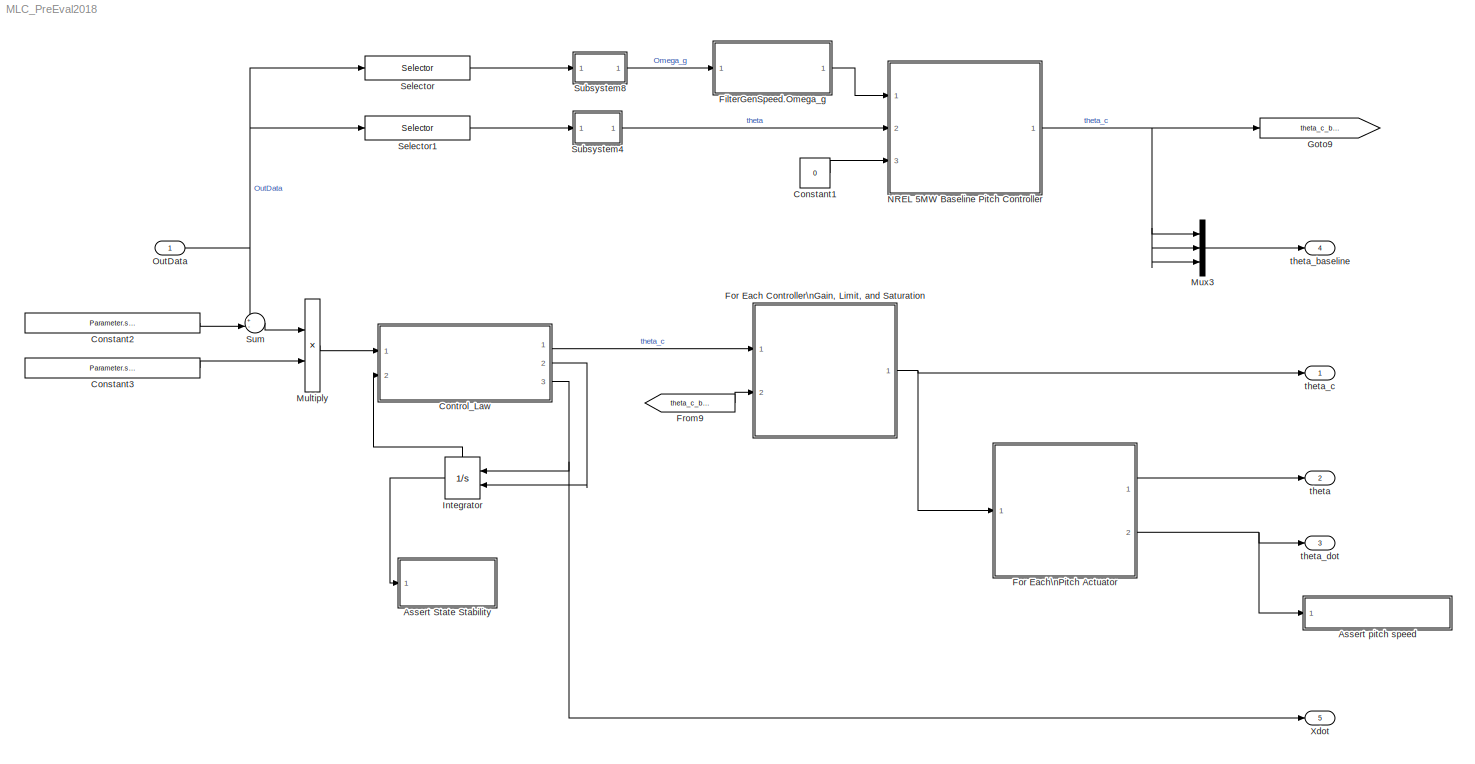
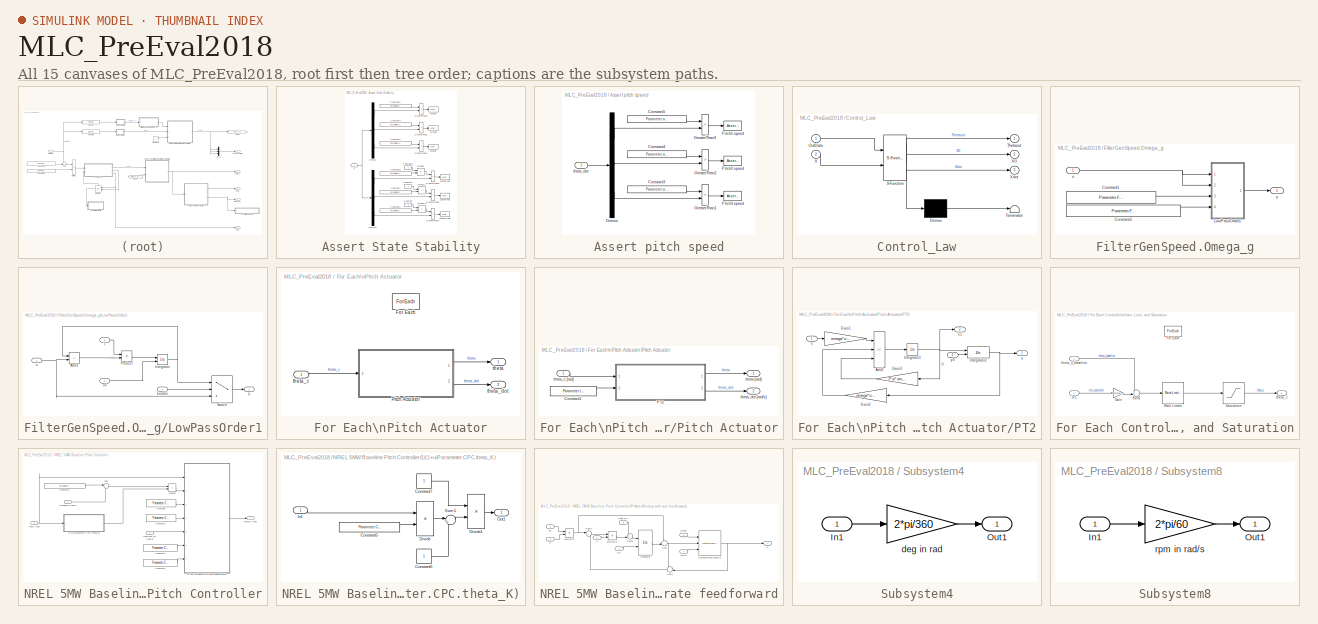
[diagram: thumbnail index - all 15 canvases of the model, root first then tree order]
MODEL MLC_PreEval2018
KIND model
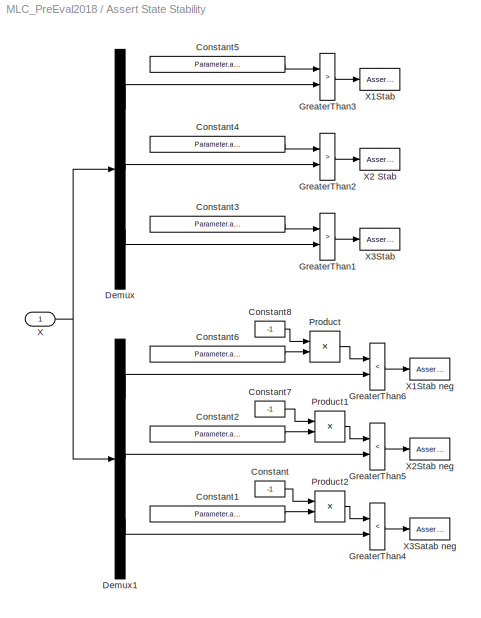
BLOCK [SubSystem] Assert State Stability
  Ports = [1]
  RequestExecContextInheritance = off
  SID = 9297
BLOCK [Constant] Assert State Stability/Constant
  SID = 9321
  Value = -1
BLOCK [Constant] Assert State Stability/Constant1
  SID = 9309
  Value = Parameter.assert.StateLim
BLOCK [Constant] Assert State Stability/Constant2
  SID = 9310
  Value = Parameter.assert.StateLim
BLOCK [Constant] Assert State Stability/Constant3
  SID = 9299
  Value = Parameter.assert.StateLim
BLOCK [Constant] Assert State Stability/Constant4
  SID = 9300
  Value = Parameter.assert.StateLim
BLOCK [Constant] Assert State Stability/Constant5
  SID = 9301
  Value = Parameter.assert.StateLim
BLOCK [Constant] Assert State Stability/Constant6
  SID = 9311
  Value = Parameter.assert.StateLim
BLOCK [Constant] Assert State Stability/Constant7
  SID = 9322
  Value = -1
BLOCK [Constant] Assert State Stability/Constant8
  SID = 9323
  Value = -1
BLOCK [Demux] Assert State Stability/Demux
  Outputs = 3
  Ports = [1, 3]
  SID = 9302
BLOCK [Demux] Assert State Stability/Demux1
  Outputs = 3
  Ports = [1, 3]
  SID = 9324
BLOCK [RelationalOperator] Assert State Stability/GreaterThan1
  InputSameDT = off
  Operator = >
  OutDataTypeStr = boolean
  Ports = [2, 1]
  RndMeth = Simplest
  SID = 9303
BLOCK [RelationalOperator] Assert State Stability/GreaterThan2
  InputSameDT = off
  Operator = >
  OutDataTypeStr = boolean
  Ports = [2, 1]
  RndMeth = Simplest
  SID = 9304
BLOCK [RelationalOperator] Assert State Stability/GreaterThan3
  InputSameDT = off
  Operator = >
  OutDataTypeStr = boolean
  Ports = [2, 1]
  RndMeth = Simplest
  SID = 9305
BLOCK [RelationalOperator] Assert State Stability/GreaterThan4
  InputSameDT = off
  Operator = <
  OutDataTypeStr = boolean
  Ports = [2, 1]
  RndMeth = Simplest
  SID = 9312
BLOCK [RelationalOperator] Assert State Stability/GreaterThan5
  InputSameDT = off
  Operator = <
  OutDataTypeStr = boolean
  Ports = [2, 1]
  RndMeth = Simplest
  SID = 9313
BLOCK [RelationalOperator] Assert State Stability/GreaterThan6
  InputSameDT = off
  Operator = <
  OutDataTypeStr = boolean
  Ports = [2, 1]
  RndMeth = Simplest
  SID = 9314
BLOCK [Product] Assert State Stability/Product
  Ports = [2, 1]
  SID = 9318
BLOCK [Product] Assert State Stability/Product1
  Ports = [2, 1]
  SID = 9319
BLOCK [Product] Assert State Stability/Product2
  Ports = [2, 1]
  SID = 9320
BLOCK [Inport] Assert State Stability/X
  SID = 9298
BLOCK [Assertion] Assert State Stability/X1Stab
  SID = 9306
BLOCK [Assertion] Assert State Stability/X1Stab neg
  SID = 9315
BLOCK [Assertion] Assert State Stability/X2 Stab
  SID = 9307
BLOCK [Assertion] Assert State Stability/X2Stab neg
  SID = 9316
BLOCK [Assertion] Assert State Stability/X3Satab neg
  SID = 9317
BLOCK [Assertion] Assert State Stability/X3Stab
  SID = 9308
BLOCK [SubSystem] Assert pitch speed
  Ports = [1]
  RequestExecContextInheritance = off
  SID = 7727
BLOCK [Constant] Assert pitch speed/Constant3
  SID = 7711
  Value = Parameter.assert.pitchVLim
BLOCK [Constant] Assert pitch speed/Constant4
  SID = 7712
  Value = Parameter.assert.pitchVLim
BLOCK [Constant] Assert pitch speed/Constant5
  SID = 7713
  Value = Parameter.assert.pitchVLim
BLOCK [Demux] Assert pitch speed/Demux
  Outputs = 3
  Ports = [1, 3]
  SID = 7726
BLOCK [RelationalOperator] Assert pitch speed/GreaterThan1
  InputSameDT = off
  Operator = >
  OutDataTypeStr = boolean
  Ports = [2, 1]
  RndMeth = Simplest
  SID = 7714
BLOCK [RelationalOperator] Assert pitch speed/GreaterThan2
  InputSameDT = off
  Operator = >
  OutDataTypeStr = boolean
  Ports = [2, 1]
  RndMeth = Simplest
  SID = 7715
BLOCK [RelationalOperator] Assert pitch speed/GreaterThan3
  InputSameDT = off
  Operator = >
  OutDataTypeStr = boolean
  Ports = [2, 1]
  RndMeth = Simplest
  SID = 7716
BLOCK [Assertion] Assert pitch speed/Pitch1 speed
  SID = 7719
BLOCK [Assertion] Assert pitch speed/Pitch2 speed
  SID = 7718
BLOCK [Assertion] Assert pitch speed/Pitch3 speed
  SID = 7717
BLOCK [Inport] Assert pitch speed/theta_dot
  SID = 7728
BLOCK [Constant] Constant1
  SID = 7794
  Value = 0
BLOCK [Constant] Constant2
  SID = 7987
  Value = Parameter.sensorsNormOffset
BLOCK [Constant] Constant3
  SID = 7991
  Value = Parameter.sensorNormGain
BLOCK [SubSystem] Control_Law
  ErrorFcn = Stateflow.Translate.translate
  PermitHierarchicalResolution = ExplicitOnly
  Ports = [2, 3]
  RequestExecContextInheritance = off
  SFBlockType = MATLAB Function
  SID = 9293
  TreatAsAtomicUnit = on
BLOCK [Demux] Control_Law/ Demux 
  Outputs = 1
  Ports = [1, 1]
  SID = 9293::28
BLOCK [S-Function] Control_Law/ SFunction 
  EnableBusSupport = off
  FunctionName = sf_sfun
  Parameters = CParameter
  PortCounts = [2 4]
  Ports = [2, 4]
  SFcnIsStateOwnerBlock = off
  SFunctionDeploymentMode = off
  SID = 9293::27
  Tag = Stateflow S-Function MLC_PreEval2018 2
BLOCK [Terminator] Control_Law/ Terminator 
  SID = 9293::29
BLOCK [Inport] Control_Law/OutData
  SID = 9293::23
BLOCK [Outport] Control_Law/Thetaout
  SID = 9293::5
  VectorParamsAs1DForOutWhenUnconnected = off
BLOCK [Inport] Control_Law/X
  Port = 2
  SID = 9293::24
BLOCK [Outport] Control_Law/X0
  Port = 2
  SID = 9293::26
  VectorParamsAs1DForOutWhenUnconnected = off
BLOCK [Outport] Control_Law/Xdot
  Port = 3
  SID = 9293::22
  VectorParamsAs1DForOutWhenUnconnected = off
BLOCK [SubSystem] FilterGenSpeed.Omega_g
  Ports = [1, 1]
  RequestExecContextInheritance = off
  SID = 7795
BLOCK [Constant] FilterGenSpeed.Omega_g/Constant1
  SID = 7797
  Value = Parameter.Filter.FilterGenSpeed.T63
BLOCK [Constant] FilterGenSpeed.Omega_g/Constant3
  SID = 7798
  Value = Parameter.Filter.FilterGenSpeed.Omega_g.Enable
BLOCK [SubSystem] FilterGenSpeed.Omega_g/LowPassOrder1
  Ports = [4, 1]
  RequestExecContextInheritance = off
  SID = 7799
BLOCK [Sum] FilterGenSpeed.Omega_g/LowPassOrder1/Add3
  IconShape = rectangular
  Inputs = -+
  Ports = [2, 1]
  SID = 7804
BLOCK [Inport] FilterGenSpeed.Omega_g/LowPassOrder1/Enable
  Port = 4
  SID = 7803
BLOCK [Integrator] FilterGenSpeed.Omega_g/LowPassOrder1/Integrator
  InitialConditionSource = external
  Ports = [2, 1]
  SID = 7805
BLOCK [Product] FilterGenSpeed.Omega_g/LowPassOrder1/Product
  Inputs = /*
  Ports = [2, 1]
  RndMeth = Zero
  SID = 7806
BLOCK [Switch] FilterGenSpeed.Omega_g/LowPassOrder1/Switch
  Criteria = u2 > Threshold
  InputSameDT = off
  SID = 7807
  SaturateOnIntegerOverflow = off
  Threshold = 0.5
BLOCK [Inport] FilterGenSpeed.Omega_g/LowPassOrder1/T
  Port = 3
  SID = 7802
BLOCK [Inport] FilterGenSpeed.Omega_g/LowPassOrder1/u
  Port = 2
  SID = 7801
BLOCK [Inport] FilterGenSpeed.Omega_g/LowPassOrder1/u0
  SID = 7800
BLOCK [Outport] FilterGenSpeed.Omega_g/LowPassOrder1/y
  SID = 7808
  VectorParamsAs1DForOutWhenUnconnected = off
BLOCK [Inport] FilterGenSpeed.Omega_g/u
  SID = 7796
BLOCK [Outport] FilterGenSpeed.Omega_g/y
  SID = 7809
  VectorParamsAs1DForOutWhenUnconnected = off
BLOCK [SubSystem] For Each Controller\nGain, Limit, and Saturation
  Ports = [2, 1]
  RequestExecContextInheritance = off
  SID = 9258
  TreatAsAtomicUnit = on
BLOCK [ForEach] For Each Controller\nGain, Limit, and Saturation/For Each
  DisableCoverage = on
  Ports = []
  SID = 9260
BLOCK [Gain] For Each Controller\nGain, Limit, and Saturation/Gain
  AttributesFormatString = %<Gain>
  Gain = Parameter.MLC.gain
  SID = 9264
BLOCK [Inport] For Each Controller\nGain, Limit, and Saturation/In1
  Partition = on
  PartitionDimension = 1
  PartitionOffset = 0
  PartitionWidth = 1
  SID = 9259
BLOCK [RateLimiter] For Each Controller\nGain, Limit, and Saturation/Rate Limiter
  AttributesFormatString = %<RisingSlewLimit>\n%<FallingSlewLimit>
  FallingSlewLimit = -deg2rad(Parameter.assert.pitchVLim)
  RisingSlewLimit = deg2rad(Parameter.assert.pitchVLim)
  SID = 9265
  SampleTimeMode = inherited
BLOCK [Saturate] For Each Controller\nGain, Limit, and Saturation/Saturation
  AttributesFormatString = %<UpperLimit>\n%<LowerLimit>
  LowerLimit = Parameter.CPC.theta_min
  SID = 9266
  UpperLimit = Parameter.CPC.theta_max
BLOCK [Sum] For Each Controller\nGain, Limit, and Saturation/Sum1
  Inputs = ++|
  Ports = [2, 1]
  SID = 9267
BLOCK [Outport] For Each Controller\nGain, Limit, and Saturation/theta_c
  ConcatenationDimension = 1
  SID = 9268
  VectorParamsAs1DForOutWhenUnconnected = off
BLOCK [Inport] For Each Controller\nGain, Limit, and Saturation/theta_c_baseline
  Port = 2
  SID = 9263
BLOCK [SubSystem] For Each\nPitch Actuator
  Ports = [1, 2]
  RequestExecContextInheritance = off
  SID = 9273
  TreatAsAtomicUnit = on
BLOCK [ForEach] For Each\nPitch Actuator/For Each
  DisableCoverage = on
  Ports = []
  SID = 9275
BLOCK [SubSystem] For Each\nPitch Actuator/Pitch Actuator
  AncestorBlock = Library/Models/Pitch Actuator
  Ports = [1, 2]
  RequestExecContextInheritance = off
  SID = 9277
BLOCK [Constant] For Each\nPitch Actuator/Pitch Actuator/Constant1
  SID = 9277:6457
  Value = Parameter.IC.theta
BLOCK [SubSystem] For Each\nPitch Actuator/Pitch Actuator/PT2
  Ports = [2, 2]
  RequestExecContextInheritance = off
  SID = 9277:6464
BLOCK [Sum] For Each\nPitch Actuator/Pitch Actuator/PT2/Add3
  IconShape = rectangular
  Inputs = +--
  Ports = [3, 1]
  SID = 9277:6467
BLOCK [Gain] For Each\nPitch Actuator/Pitch Actuator/PT2/Gain1
  Gain = omega*omega
  OutDataTypeStr = Inherit: Same as input
  ParamDataTypeStr = Inherit: Same as input
  SID = 9277:6468
  SaturateOnIntegerOverflow = on
BLOCK [Gain] For Each\nPitch Actuator/Pitch Actuator/PT2/Gain2
  Gain = omega*omega
  OutDataTypeStr = Inherit: Same as input
  ParamDataTypeStr = Inherit: Same as input
  SID = 9277:6469
  SaturateOnIntegerOverflow = on
BLOCK [Gain] For Each\nPitch Actuator/Pitch Actuator/PT2/Gain3
  Gain = 2*xi*omega
  OutDataTypeStr = Inherit: Same as input
  ParamDataTypeStr = Inherit: Same as input
  SID = 9277:6470
  SaturateOnIntegerOverflow = on
BLOCK [Integrator] For Each\nPitch Actuator/Pitch Actuator/PT2/Integrator1
  LimitOutput = on
  LowerSaturationLimit = x1_min
  Ports = [1, 1]
  SID = 9277:6471
  UpperSaturationLimit = x1_max
BLOCK [Integrator] For Each\nPitch Actuator/Pitch Actuator/PT2/Integrator2
  InitialCondition = x2_t0
  InitialConditionSource = external
  LimitOutput = on
  LowerSaturationLimit = x2_min
  Ports = [2, 1]
  SID = 9277:6472
  UpperSaturationLimit = x2_max
BLOCK [Inport] For Each\nPitch Actuator/Pitch Actuator/PT2/u
  SID = 9277:6465
BLOCK [Outport] For Each\nPitch Actuator/Pitch Actuator/PT2/x1
  Port = 2
  SID = 9277:6474
  VectorParamsAs1DForOutWhenUnconnected = off
BLOCK [Outport] For Each\nPitch Actuator/Pitch Actuator/PT2/y
  SID = 9277:6473
  VectorParamsAs1DForOutWhenUnconnected = off
BLOCK [Inport] For Each\nPitch Actuator/Pitch Actuator/PT2/y0
  Port = 2
  SID = 9277:6466
BLOCK [Outport] For Each\nPitch Actuator/Pitch Actuator/theta [rad]
  SID = 9277:6478
  VectorParamsAs1DForOutWhenUnconnected = off
BLOCK [Inport] For Each\nPitch Actuator/Pitch Actuator/theta_c [rad]
  SID = 9277:6456
BLOCK [Outport] For Each\nPitch Actuator/Pitch Actuator/theta_dot [rad//s]
  Port = 2
  SID = 9277:6479
  VectorParamsAs1DForOutWhenUnconnected = off
BLOCK [Outport] For Each\nPitch Actuator/theta
  ConcatenationDimension = 1
  SID = 9276
  VectorParamsAs1DForOutWhenUnconnected = off
BLOCK [Inport] For Each\nPitch Actuator/theta_c
  Partition = on
  PartitionDimension = 1
  PartitionOffset = 0
  PartitionWidth = 1
  SID = 9274
BLOCK [Outport] For Each\nPitch Actuator/theta_dot
  ConcatenationDimension = 1
  Port = 2
  SID = 9278
  VectorParamsAs1DForOutWhenUnconnected = off
BLOCK [From] From9
  GotoTag = theta_c_baseline
  SID = 9269
BLOCK [Goto] Goto9
  GotoTag = theta_c_baseline
  SID = 7982
BLOCK [Integrator] Integrator
  InitialConditionSource = external
  Ports = [2, 1, 0, 0, 1]
  SID = 9294
  ShowStatePort = on
BLOCK [Product] Multiply
  Ports = [2, 1]
  SID = 8261
BLOCK [Mux] Mux3
  DisplayOption = bar
  Inputs = 3
  Ports = [3, 1]
  SID = 8260
BLOCK [SubSystem] NREL 5MW Baseline Pitch Controller
  Ports = [3, 1]
  RequestExecContextInheritance = off
  SID = 7810
BLOCK [SubSystem] NREL 5MW Baseline Pitch Controller/1//(1+u//Parameter.CPC.theta_K)
  Ports = [1, 1]
  RequestExecContextInheritance = off
  SID = 9284
BLOCK [Constant] NREL 5MW Baseline Pitch Controller/1//(1+u//Parameter.CPC.theta_K)/Constant5
  SID = 9286
  Value = Parameter.CPC.theta_K
BLOCK [Constant] NREL 5MW Baseline Pitch Controller/1//(1+u//Parameter.CPC.theta_K)/Constant6
  SID = 9287
BLOCK [Constant] NREL 5MW Baseline Pitch Controller/1//(1+u//Parameter.CPC.theta_K)/Constant7
  SID = 9288
BLOCK [Product] NREL 5MW Baseline Pitch Controller/1//(1+u//Parameter.CPC.theta_K)/Divide
  Inputs = */
  Ports = [2, 1]
  SID = 9289
BLOCK [Product] NREL 5MW Baseline Pitch Controller/1//(1+u//Parameter.CPC.theta_K)/Divide1
  Inputs = */
  Ports = [2, 1]
  SID = 9290
BLOCK [Inport] NREL 5MW Baseline Pitch Controller/1//(1+u//Parameter.CPC.theta_K)/In1
  SID = 9285
BLOCK [Outport] NREL 5MW Baseline Pitch Controller/1//(1+u//Parameter.CPC.theta_K)/Out1
  SID = 9292
  VectorParamsAs1DForOutWhenUnconnected = off
BLOCK [Sum] NREL 5MW Baseline Pitch Controller/1//(1+u//Parameter.CPC.theta_K)/Sum1
  Inputs = |++
  Ports = [2, 1]
  SID = 9291
BLOCK [Constant] NREL 5MW Baseline Pitch Controller/Constant
  SID = 7814
  Value = Parameter.CPC.kp
BLOCK [Constant] NREL 5MW Baseline Pitch Controller/Constant1
  SID = 7815
  Value = Parameter.CPC.Ti
BLOCK [Constant] NREL 5MW Baseline Pitch Controller/Constant2
  SID = 7816
  Value = Parameter.CPC.theta_min
BLOCK [Constant] NREL 5MW Baseline Pitch Controller/Constant3
  SID = 7817
  Value = Parameter.CPC.theta_max
BLOCK [Constant] NREL 5MW Baseline Pitch Controller/Constant4
  SID = 7818
  Value = Parameter.CPC.Omega_g_rated
BLOCK [Inport] NREL 5MW Baseline Pitch Controller/Omega_g [rad//s]
  SID = 7811
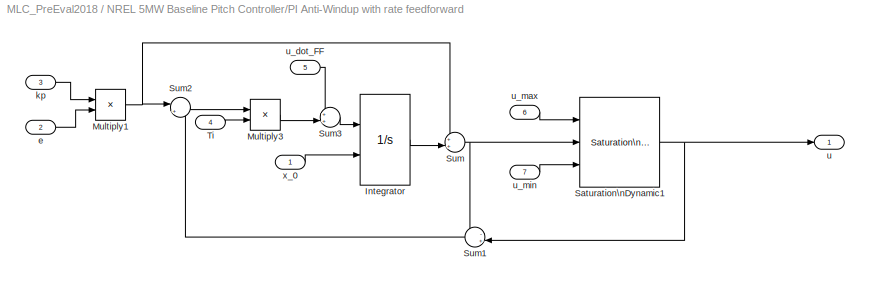
BLOCK [SubSystem] NREL 5MW Baseline Pitch Controller/PI Anti-Windup with rate feedforward
  Ports = [7, 1]
  RequestExecContextInheritance = off
  SID = 7820
BLOCK [Integrator] NREL 5MW Baseline Pitch Controller/PI Anti-Windup with rate feedforward/Integrator
  InitialConditionSource = external
  Ports = [2, 1]
  SID = 7828
BLOCK [Product] NREL 5MW Baseline Pitch Controller/PI Anti-Windup with rate feedforward/Multiply1
  Inputs = **
  Ports = [2, 1]
  SID = 7829
BLOCK [Product] NREL 5MW Baseline Pitch Controller/PI Anti-Windup with rate feedforward/Multiply3
  Inputs = */
  Ports = [2, 1]
  SID = 7830
BLOCK [Reference] NREL 5MW Baseline Pitch Controller/PI Anti-Windup with rate feedforward/Saturation\nDynamic1  REF=simulink/Discontinuities/Saturation\nDynamic
  DoSatur = off
  LockScale = off
  OutDataType = fixdt(1, 16)
  OutDataTypeStr = Inherit: Same as second input
  OutMax = []
  OutMin = []
  OutScaling = 2^-10
  OutputDataTypeScalingMode = Same as second input
  Ports = [3, 1]
  RTWMemSecDataConstants = Inherit from model
  RTWMemSecDataInternal = Inherit from model
  RTWMemSecDataParameters = Inherit from model
  RTWMemSecFuncExecute = Inherit from model
  RTWMemSecFuncInitTerm = Inherit from model
  RndMeth = Floor
  SID = 7832
  SourceBlock = simulink/Discontinuities/Saturation\nDynamic
  SourceProductBaseCode = SL
  SourceType = Saturation Dynamic
BLOCK [Sum] NREL 5MW Baseline Pitch Controller/PI Anti-Windup with rate feedforward/Sum
  Inputs = ++|
  Ports = [2, 1]
  SID = 7833
BLOCK [Sum] NREL 5MW Baseline Pitch Controller/PI Anti-Windup with rate feedforward/Sum1
  Inputs = -+|
  Ports = [2, 1]
  SID = 7834
BLOCK [Sum] NREL 5MW Baseline Pitch Controller/PI Anti-Windup with rate feedforward/Sum2
  Inputs = |++
  Ports = [2, 1]
  SID = 7835
BLOCK [Sum] NREL 5MW Baseline Pitch Controller/PI Anti-Windup with rate feedforward/Sum3
  Inputs = ++|
  Ports = [2, 1]
  SID = 7836
BLOCK [Inport] NREL 5MW Baseline Pitch Controller/PI Anti-Windup with rate feedforward/Ti
  Port = 4
  SID = 7824
BLOCK [Inport] NREL 5MW Baseline Pitch Controller/PI Anti-Windup with rate feedforward/e
  Port = 2
  SID = 7822
BLOCK [Inport] NREL 5MW Baseline Pitch Controller/PI Anti-Windup with rate feedforward/kp
  Port = 3
  SID = 7823
BLOCK [Outport] NREL 5MW Baseline Pitch Controller/PI Anti-Windup with rate feedforward/u
  SID = 7837
  VectorParamsAs1DForOutWhenUnconnected = off
BLOCK [Inport] NREL 5MW Baseline Pitch Controller/PI Anti-Windup with rate feedforward/u_dot_FF
  Port = 5
  SID = 7825
BLOCK [Inport] NREL 5MW Baseline Pitch Controller/PI Anti-Windup with rate feedforward/u_max
  Port = 6
  SID = 7826
BLOCK [Inport] NREL 5MW Baseline Pitch Controller/PI Anti-Windup with rate feedforward/u_min
  Port = 7
  SID = 7827
BLOCK [Inport] NREL 5MW Baseline Pitch Controller/PI Anti-Windup with rate feedforward/x_0
  SID = 7821
BLOCK [Product] NREL 5MW Baseline Pitch Controller/Product
  Ports = [2, 1]
  RndMeth = Zero
  SID = 7838
BLOCK [Sum] NREL 5MW Baseline Pitch Controller/Sum
  Inputs = |-+
  Ports = [2, 1]
  SID = 7839
BLOCK [Inport] NREL 5MW Baseline Pitch Controller/theta [rad]
  Port = 2
  SID = 7812
BLOCK [Outport] NREL 5MW Baseline Pitch Controller/theta_c [rad]
  SID = 7840
  VectorParamsAs1DForOutWhenUnconnected = off
BLOCK [Inport] NREL 5MW Baseline Pitch Controller/theta_dot_FF [rad//s]
  Port = 3
  SID = 7813
BLOCK [Inport] OutData
  PortDimensions = Parameter.MLC.totNSensors
  SID = 7559
BLOCK [Selector] Selector
  AttributesFormatString = %<Indices>
  IndexOptions = Index vector (dialog)
  Indices = Parameter.outListIdx.GenSpeed
  InputPortWidth = Parameter.outListLen
  OutputSizes = 1
  Ports = [1, 1]
  SID = 9271
BLOCK [Selector] Selector1
  AttributesFormatString = %<Indices>
  IndexOptions = Index vector (dialog)
  Indices = Parameter.outListIdx.BldPitch1
  InputPortWidth = Parameter.outListLen
  OutputSizes = 1
  Ports = [1, 1]
  SID = 9272
BLOCK [SubSystem] Subsystem4
  Ports = [1, 1]
  RequestExecContextInheritance = off
  SID = 7846
BLOCK [Inport] Subsystem4/In1
  SID = 7847
BLOCK [Outport] Subsystem4/Out1
  SID = 7849
  VectorParamsAs1DForOutWhenUnconnected = off
BLOCK [Gain] Subsystem4/deg in rad
  Gain = 2*pi/360
  OutDataTypeStr = Inherit: Same as input
  ParamDataTypeStr = Inherit: Same as input
  SID = 7848
  SaturateOnIntegerOverflow = on
BLOCK [SubSystem] Subsystem8
  Ports = [1, 1]
  RequestExecContextInheritance = off
  SID = 7841
BLOCK [Inport] Subsystem8/In1
  SID = 7842
BLOCK [Outport] Subsystem8/Out1
  SID = 7844
  VectorParamsAs1DForOutWhenUnconnected = off
BLOCK [Gain] Subsystem8/rpm in rad//s
  Gain = 2*pi/60
  OutDataTypeStr = Inherit: Same as input
  ParamDataTypeStr = Inherit: Same as input
  SID = 7843
  SaturateOnIntegerOverflow = on
BLOCK [Sum] Sum
  Inputs = +-|
  Ports = [2, 1]
  SID = 7990
BLOCK [Outport] Xdot
  Port = 5
  SID = 9296
  SignalName = Xdot
  VectorParamsAs1DForOutWhenUnconnected = off
BLOCK [Outport] theta
  Port = 2
  SID = 7601
  SignalName = theta
  VectorParamsAs1DForOutWhenUnconnected = off
BLOCK [Outport] theta_baseline
  Port = 4
  SID = 8404
  SignalName = theta_baseline
  VectorParamsAs1DForOutWhenUnconnected = off
BLOCK [Outport] theta_c 
  SID = 7331
  SignalName = theta_c
  VectorParamsAs1DForOutWhenUnconnected = off
BLOCK [Outport] theta_dot
  Port = 3
  SID = 7603
  SignalName = theta_dot
  VectorParamsAs1DForOutWhenUnconnected = off
LINE Assert State Stability/Constant1:1 -> Assert State Stability/Product2:2
LINE Assert State Stability/Constant2:1 -> Assert State Stability/Product1:2
LINE Assert State Stability/Constant3:1 -> Assert State Stability/GreaterThan1:1
LINE Assert State Stability/Constant4:1 -> Assert State Stability/GreaterThan2:1
LINE Assert State Stability/Constant5:1 -> Assert State Stability/GreaterThan3:1
LINE Assert State Stability/Constant6:1 -> Assert State Stability/Product:2
LINE Assert State Stability/Constant7:1 -> Assert State Stability/Product1:1
LINE Assert State Stability/Constant8:1 -> Assert State Stability/Product:1
LINE Assert State Stability/Constant:1 -> Assert State Stability/Product2:1
LINE Assert State Stability/Demux1:1 -> Assert State Stability/GreaterThan6:2
LINE Assert State Stability/Demux1:2 -> Assert State Stability/GreaterThan5:2
LINE Assert State Stability/Demux1:3 -> Assert State Stability/GreaterThan4:2
LINE Assert State Stability/Demux:1 -> Assert State Stability/GreaterThan3:2
LINE Assert State Stability/Demux:2 -> Assert State Stability/GreaterThan2:2
LINE Assert State Stability/Demux:3 -> Assert State Stability/GreaterThan1:2
LINE Assert State Stability/GreaterThan1:1 -> Assert State Stability/X3Stab:1
LINE Assert State Stability/GreaterThan2:1 -> Assert State Stability/X2 Stab:1
LINE Assert State Stability/GreaterThan3:1 -> Assert State Stability/X1Stab:1
LINE Assert State Stability/GreaterThan4:1 -> Assert State Stability/X3Satab neg:1
LINE Assert State Stability/GreaterThan5:1 -> Assert State Stability/X2Stab neg:1
LINE Assert State Stability/GreaterThan6:1 -> Assert State Stability/X1Stab neg:1
LINE Assert State Stability/Product1:1 -> Assert State Stability/GreaterThan5:1
LINE Assert State Stability/Product2:1 -> Assert State Stability/GreaterThan4:1
LINE Assert State Stability/Product:1 -> Assert State Stability/GreaterThan6:1
NET Assert State Stability/X:1 -> Assert State Stability/Demux1:1, Assert State Stability/Demux:1
LINE Assert pitch speed/Constant3:1 -> Assert pitch speed/GreaterThan1:1
LINE Assert pitch speed/Constant4:1 -> Assert pitch speed/GreaterThan2:1
LINE Assert pitch speed/Constant5:1 -> Assert pitch speed/GreaterThan3:1
LINE Assert pitch speed/Demux:1 -> Assert pitch speed/GreaterThan3:2
LINE Assert pitch speed/Demux:2 -> Assert pitch speed/GreaterThan2:2
LINE Assert pitch speed/Demux:3 -> Assert pitch speed/GreaterThan1:2
LINE Assert pitch speed/GreaterThan1:1 -> Assert pitch speed/Pitch3 speed:1
LINE Assert pitch speed/GreaterThan2:1 -> Assert pitch speed/Pitch2 speed:1
LINE Assert pitch speed/GreaterThan3:1 -> Assert pitch speed/Pitch1 speed:1
LINE Assert pitch speed/theta_dot:1 -> Assert pitch speed/Demux:1
LINE Constant1:1 -> NREL 5MW Baseline Pitch Controller:3
LINE Constant2:1 -> Sum:2
LINE Constant3:1 -> Multiply:2
LINE Control_Law/ Demux :1 -> Control_Law/ Terminator :1
LINE Control_Law/ SFunction :1 -> Control_Law/ Demux :1
LINE Control_Law/ SFunction :2 -> Control_Law/Thetaout:1
LINE Control_Law/ SFunction :3 -> Control_Law/X0:1
LINE Control_Law/ SFunction :4 -> Control_Law/Xdot:1
LINE Control_Law/OutData:1 -> Control_Law/ SFunction :1
LINE Control_Law/X:1 -> Control_Law/ SFunction :2
LINE Control_Law:1 -> For Each Controller\nGain, Limit, and Saturation:1
LINE Control_Law:2 -> Integrator:2
NET Control_Law:3 -> Integrator:1, Xdot:1
LINE FilterGenSpeed.Omega_g/Constant1:1 -> FilterGenSpeed.Omega_g/LowPassOrder1:3
LINE FilterGenSpeed.Omega_g/Constant3:1 -> FilterGenSpeed.Omega_g/LowPassOrder1:4
LINE FilterGenSpeed.Omega_g/LowPassOrder1/Add3:1 -> FilterGenSpeed.Omega_g/LowPassOrder1/Product:2
LINE FilterGenSpeed.Omega_g/LowPassOrder1/Enable:1 -> FilterGenSpeed.Omega_g/LowPassOrder1/Switch:2
NET FilterGenSpeed.Omega_g/LowPassOrder1/Integrator:1 -> FilterGenSpeed.Omega_g/LowPassOrder1/Add3:1, FilterGenSpeed.Omega_g/LowPassOrder1/Switch:1
LINE FilterGenSpeed.Omega_g/LowPassOrder1/Product:1 -> FilterGenSpeed.Omega_g/LowPassOrder1/Integrator:1
LINE FilterGenSpeed.Omega_g/LowPassOrder1/Switch:1 -> FilterGenSpeed.Omega_g/LowPassOrder1/y:1
LINE FilterGenSpeed.Omega_g/LowPassOrder1/T:1 -> FilterGenSpeed.Omega_g/LowPassOrder1/Product:1
LINE FilterGenSpeed.Omega_g/LowPassOrder1/u0:1 -> FilterGenSpeed.Omega_g/LowPassOrder1/Integrator:2
NET FilterGenSpeed.Omega_g/LowPassOrder1/u:1 -> FilterGenSpeed.Omega_g/LowPassOrder1/Add3:2, FilterGenSpeed.Omega_g/LowPassOrder1/Switch:3
LINE FilterGenSpeed.Omega_g/LowPassOrder1:1 -> FilterGenSpeed.Omega_g/y:1
NET FilterGenSpeed.Omega_g/u:1 -> FilterGenSpeed.Omega_g/LowPassOrder1:1, FilterGenSpeed.Omega_g/LowPassOrder1:2
LINE FilterGenSpeed.Omega_g:1 -> NREL 5MW Baseline Pitch Controller:1
LINE For Each Controller\nGain, Limit, and Saturation/Gain:1 -> For Each Controller\nGain, Limit, and Saturation/Sum1:2
LINE For Each Controller\nGain, Limit, and Saturation/In1:1 -> For Each Controller\nGain, Limit, and Saturation/Gain:1
LINE For Each Controller\nGain, Limit, and Saturation/Rate Limiter:1 -> For Each Controller\nGain, Limit, and Saturation/Saturation:1
LINE For Each Controller\nGain, Limit, and Saturation/Saturation:1 -> For Each Controller\nGain, Limit, and Saturation/theta_c:1
LINE For Each Controller\nGain, Limit, and Saturation/Sum1:1 -> For Each Controller\nGain, Limit, and Saturation/Rate Limiter:1
LINE For Each Controller\nGain, Limit, and Saturation/theta_c_baseline:1 -> For Each Controller\nGain, Limit, and Saturation/Sum1:1
NET For Each Controller\nGain, Limit, and Saturation:1 -> For Each\nPitch Actuator:1, theta_c :1
LINE For Each\nPitch Actuator/Pitch Actuator/Constant1:1 -> For Each\nPitch Actuator/Pitch Actuator/PT2:2
LINE For Each\nPitch Actuator/Pitch Actuator/PT2/Add3:1 -> For Each\nPitch Actuator/Pitch Actuator/PT2/Integrator1:1
LINE For Each\nPitch Actuator/Pitch Actuator/PT2/Gain1:1 -> For Each\nPitch Actuator/Pitch Actuator/PT2/Add3:1
LINE For Each\nPitch Actuator/Pitch Actuator/PT2/Gain2:1 -> For Each\nPitch Actuator/Pitch Actuator/PT2/Add3:2
LINE For Each\nPitch Actuator/Pitch Actuator/PT2/Gain3:1 -> For Each\nPitch Actuator/Pitch Actuator/PT2/Add3:3
NET For Each\nPitch Actuator/Pitch Actuator/PT2/Integrator1:1 -> For Each\nPitch Actuator/Pitch Actuator/PT2/Gain3:1, For Each\nPitch Actuator/Pitch Actuator/PT2/Integrator2:1, For Each\nPitch Actuator/Pitch Actuator/PT2/x1:1
NET For Each\nPitch Actuator/Pitch Actuator/PT2/Integrator2:1 -> For Each\nPitch Actuator/Pitch Actuator/PT2/Gain2:1, For Each\nPitch Actuator/Pitch Actuator/PT2/y:1
LINE For Each\nPitch Actuator/Pitch Actuator/PT2/u:1 -> For Each\nPitch Actuator/Pitch Actuator/PT2/Gain1:1
LINE For Each\nPitch Actuator/Pitch Actuator/PT2/y0:1 -> For Each\nPitch Actuator/Pitch Actuator/PT2/Integrator2:2
LINE For Each\nPitch Actuator/Pitch Actuator/PT2:1 -> For Each\nPitch Actuator/Pitch Actuator/theta [rad]:1
LINE For Each\nPitch Actuator/Pitch Actuator/PT2:2 -> For Each\nPitch Actuator/Pitch Actuator/theta_dot [rad//s]:1
LINE For Each\nPitch Actuator/Pitch Actuator/theta_c [rad]:1 -> For Each\nPitch Actuator/Pitch Actuator/PT2:1
LINE For Each\nPitch Actuator/Pitch Actuator:1 -> For Each\nPitch Actuator/theta:1
LINE For Each\nPitch Actuator/Pitch Actuator:2 -> For Each\nPitch Actuator/theta_dot:1
LINE For Each\nPitch Actuator/theta_c:1 -> For Each\nPitch Actuator/Pitch Actuator:1
LINE For Each\nPitch Actuator:1 -> theta:1
NET For Each\nPitch Actuator:2 -> Assert pitch speed:1, theta_dot:1
LINE From9:1 -> For Each Controller\nGain, Limit, and Saturation:2
LINE Integrator:1 -> Assert State Stability:1
LINE Integrator:state -> Control_Law:2
LINE Multiply:1 -> Control_Law:1
LINE Mux3:1 -> theta_baseline:1
LINE NREL 5MW Baseline Pitch Controller/1//(1+u//Parameter.CPC.theta_K)/Constant5:1 -> NREL 5MW Baseline Pitch Controller/1//(1+u//Parameter.CPC.theta_K)/Divide:2
LINE NREL 5MW Baseline Pitch Controller/1//(1+u//Parameter.CPC.theta_K)/Constant6:1 -> NREL 5MW Baseline Pitch Controller/1//(1+u//Parameter.CPC.theta_K)/Sum1:2
LINE NREL 5MW Baseline Pitch Controller/1//(1+u//Parameter.CPC.theta_K)/Constant7:1 -> NREL 5MW Baseline Pitch Controller/1//(1+u//Parameter.CPC.theta_K)/Divide1:1
LINE NREL 5MW Baseline Pitch Controller/1//(1+u//Parameter.CPC.theta_K)/Divide1:1 -> NREL 5MW Baseline Pitch Controller/1//(1+u//Parameter.CPC.theta_K)/Out1:1
LINE NREL 5MW Baseline Pitch Controller/1//(1+u//Parameter.CPC.theta_K)/Divide:1 -> NREL 5MW Baseline Pitch Controller/1//(1+u//Parameter.CPC.theta_K)/Sum1:1
LINE NREL 5MW Baseline Pitch Controller/1//(1+u//Parameter.CPC.theta_K)/In1:1 -> NREL 5MW Baseline Pitch Controller/1//(1+u//Parameter.CPC.theta_K)/Divide:1
LINE NREL 5MW Baseline Pitch Controller/1//(1+u//Parameter.CPC.theta_K)/Sum1:1 -> NREL 5MW Baseline Pitch Controller/1//(1+u//Parameter.CPC.theta_K)/Divide1:2
LINE NREL 5MW Baseline Pitch Controller/1//(1+u//Parameter.CPC.theta_K):1 -> NREL 5MW Baseline Pitch Controller/Product:2
LINE NREL 5MW Baseline Pitch Controller/Constant1:1 -> NREL 5MW Baseline Pitch Controller/PI Anti-Windup with rate feedforward:4
LINE NREL 5MW Baseline Pitch Controller/Constant2:1 -> NREL 5MW Baseline Pitch Controller/PI Anti-Windup with rate feedforward:7
LINE NREL 5MW Baseline Pitch Controller/Constant3:1 -> NREL 5MW Baseline Pitch Controller/PI Anti-Windup with rate feedforward:6
LINE NREL 5MW Baseline Pitch Controller/Constant4:1 -> NREL 5MW Baseline Pitch Controller/Sum:1
LINE NREL 5MW Baseline Pitch Controller/Constant:1 -> NREL 5MW Baseline Pitch Controller/PI Anti-Windup with rate feedforward:3
LINE NREL 5MW Baseline Pitch Controller/Omega_g [rad//s]:1 -> NREL 5MW Baseline Pitch Controller/Sum:2
LINE NREL 5MW Baseline Pitch Controller/PI Anti-Windup with rate feedforward/Integrator:1 -> NREL 5MW Baseline Pitch Controller/PI Anti-Windup with rate feedforward/Sum:2
NET NREL 5MW Baseline Pitch Controller/PI Anti-Windup with rate feedforward/Multiply1:1 -> NREL 5MW Baseline Pitch Controller/PI Anti-Windup with rate feedforward/Sum2:1, NREL 5MW Baseline Pitch Controller/PI Anti-Windup with rate feedforward/Sum:1
LINE NREL 5MW Baseline Pitch Controller/PI Anti-Windup with rate feedforward/Multiply3:1 -> NREL 5MW Baseline Pitch Controller/PI Anti-Windup with rate feedforward/Sum3:2
NET NREL 5MW Baseline Pitch Controller/PI Anti-Windup with rate feedforward/Saturation\nDynamic1:1 -> NREL 5MW Baseline Pitch Controller/PI Anti-Windup with rate feedforward/Sum1:2, NREL 5MW Baseline Pitch Controller/PI Anti-Windup with rate feedforward/u:1
LINE NREL 5MW Baseline Pitch Controller/PI Anti-Windup with rate feedforward/Sum1:1 -> NREL 5MW Baseline Pitch Controller/PI Anti-Windup with rate feedforward/Sum2:2
LINE NREL 5MW Baseline Pitch Controller/PI Anti-Windup with rate feedforward/Sum2:1 -> NREL 5MW Baseline Pitch Controller/PI Anti-Windup with rate feedforward/Multiply3:1
LINE NREL 5MW Baseline Pitch Controller/PI Anti-Windup with rate feedforward/Sum3:1 -> NREL 5MW Baseline Pitch Controller/PI Anti-Windup with rate feedforward/Integrator:1
NET NREL 5MW Baseline Pitch Controller/PI Anti-Windup with rate feedforward/Sum:1 -> NREL 5MW Baseline Pitch Controller/PI Anti-Windup with rate feedforward/Saturation\nDynamic1:2, NREL 5MW Baseline Pitch Controller/PI Anti-Windup with rate feedforward/Sum1:1
LINE NREL 5MW Baseline Pitch Controller/PI Anti-Windup with rate feedforward/Ti:1 -> NREL 5MW Baseline Pitch Controller/PI Anti-Windup with rate feedforward/Multiply3:2
LINE NREL 5MW Baseline Pitch Controller/PI Anti-Windup with rate feedforward/e:1 -> NREL 5MW Baseline Pitch Controller/PI Anti-Windup with rate feedforward/Multiply1:2
LINE NREL 5MW Baseline Pitch Controller/PI Anti-Windup with rate feedforward/kp:1 -> NREL 5MW Baseline Pitch Controller/PI Anti-Windup with rate feedforward/Multiply1:1
LINE NREL 5MW Baseline Pitch Controller/PI Anti-Windup with rate feedforward/u_dot_FF:1 -> NREL 5MW Baseline Pitch Controller/PI Anti-Windup with rate feedforward/Sum3:1
LINE NREL 5MW Baseline Pitch Controller/PI Anti-Windup with rate feedforward/u_max:1 -> NREL 5MW Baseline Pitch Controller/PI Anti-Windup with rate feedforward/Saturation\nDynamic1:1
LINE NREL 5MW Baseline Pitch Controller/PI Anti-Windup with rate feedforward/u_min:1 -> NREL 5MW Baseline Pitch Controller/PI Anti-Windup with rate feedforward/Saturation\nDynamic1:3
LINE NREL 5MW Baseline Pitch Controller/PI Anti-Windup with rate feedforward/x_0:1 -> NREL 5MW Baseline Pitch Controller/PI Anti-Windup with rate feedforward/Integrator:2
LINE NREL 5MW Baseline Pitch Controller/PI Anti-Windup with rate feedforward:1 -> NREL 5MW Baseline Pitch Controller/theta_c [rad]:1
LINE NREL 5MW Baseline Pitch Controller/Product:1 -> NREL 5MW Baseline Pitch Controller/PI Anti-Windup with rate feedforward:2
LINE NREL 5MW Baseline Pitch Controller/Sum:1 -> NREL 5MW Baseline Pitch Controller/Product:1
NET NREL 5MW Baseline Pitch Controller/theta [rad]:1 -> NREL 5MW Baseline Pitch Controller/1//(1+u//Parameter.CPC.theta_K):1, NREL 5MW Baseline Pitch Controller/PI Anti-Windup with rate feedforward:1
LINE NREL 5MW Baseline Pitch Controller/theta_dot_FF [rad//s]:1 -> NREL 5MW Baseline Pitch Controller/PI Anti-Windup with rate feedforward:5
NET NREL 5MW Baseline Pitch Controller:1 -> Goto9:1, Mux3:1, Mux3:2, Mux3:3
NET OutData:1 -> Selector1:1, Selector:1, Sum:1
LINE Selector1:1 -> Subsystem4:1
LINE Selector:1 -> Subsystem8:1
LINE Subsystem4/In1:1 -> Subsystem4/deg in rad:1
LINE Subsystem4/deg in rad:1 -> Subsystem4/Out1:1
LINE Subsystem4:1 -> NREL 5MW Baseline Pitch Controller:2
LINE Subsystem8/In1:1 -> Subsystem8/rpm in rad//s:1
LINE Subsystem8/rpm in rad//s:1 -> Subsystem8/Out1:1
LINE Subsystem8:1 -> FilterGenSpeed.Omega_g:1
LINE Sum:1 -> Multiply:1
note: NET lines group one-source signal fan-out (src -> all destinations, sorted); 1:1 wires keep LINE
CHART Control_Law states=1 transitions=1
  STATE_LABEL 'eML_blk_kernel()'
